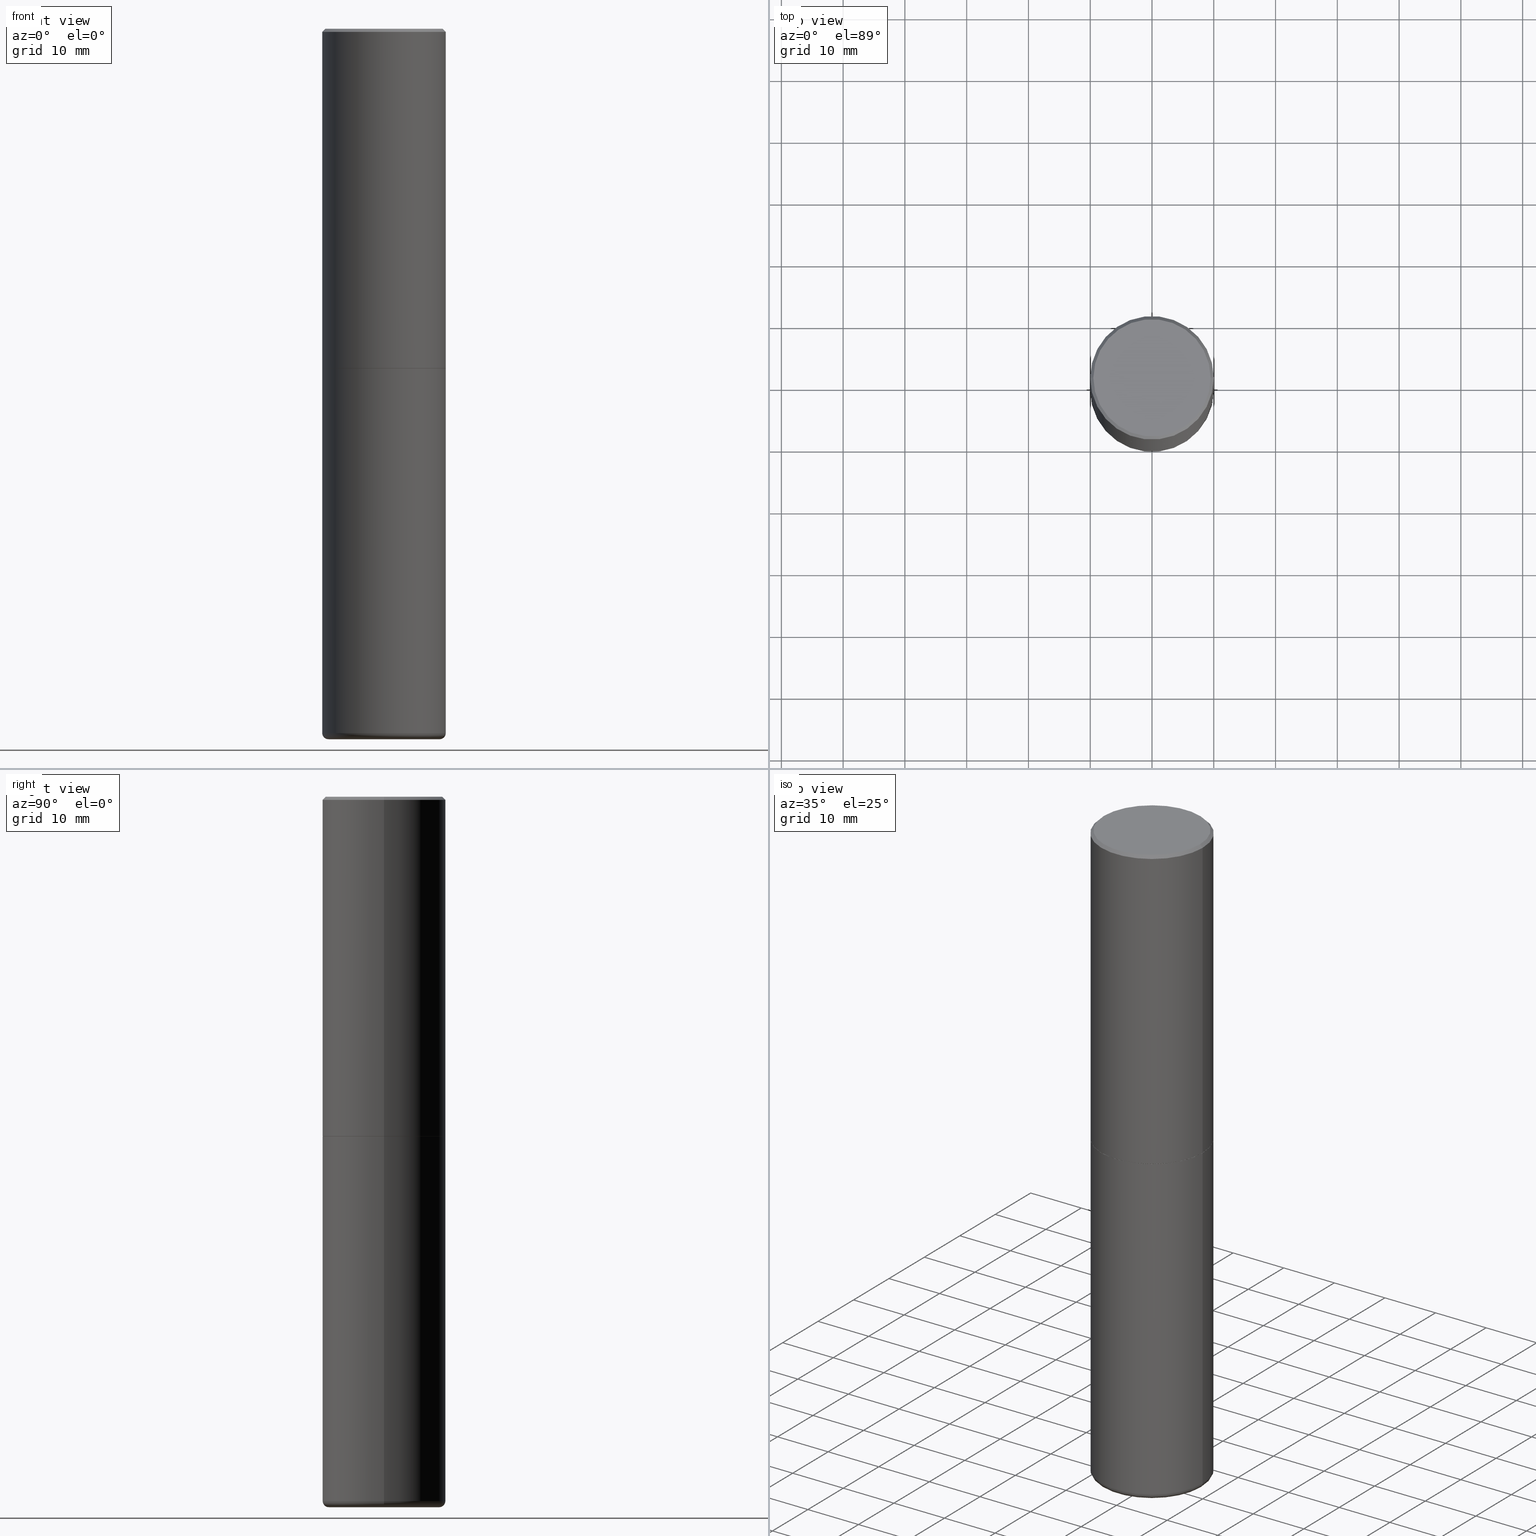
[diagram: canonical four-view strip — front | top / right | iso, engineering-drawing reading convention]
A machine part, canonical four-view strip (front | top / right | iso — engineering-drawing reading convention). The complete STEP part file that produces these views, byte-faithful:
ISO-10303-21;
HEADER;
FILE_DESCRIPTION (( 'STEP AP203' ),
    '1' );
FILE_NAME ('74530.STEP',
    '2024-03-06T15:24:33',
    ( '' ),
    ( '' ),
    'SwSTEP 2.0',
    'SolidWorks 2023',
    '' );
FILE_SCHEMA (( 'CONFIG_CONTROL_DESIGN' ));
ENDSEC;

DATA;
#1 = PRODUCT_RELATED_PRODUCT_CATEGORY ( 'detail', '', ( #184 ) ) ;
#2 = CARTESIAN_POINT ( 'NONE',  ( 1.107210456688382522E-28, -1.580803090974622705E-14, -4.527600000000000513 ) ) ;
#3 = DIRECTION ( 'NONE',  ( -2.445468806185136597E-29, 3.491481338843145583E-15, 1.000000000000000000 ) ) ;
#4 = ORIENTED_EDGE ( 'NONE', *, *, #23, .F. ) ;
#5 = APPROVAL_STATUS ( 'not_yet_approved' ) ;
#6 = CC_DESIGN_APPROVAL ( #113, ( #410 ) ) ;
#7 = CARTESIAN_POINT ( 'NONE',  ( 1.097575309592012950E-28, -1.567046654499580152E-14, -4.488199999999999079 ) ) ;
#8 = COORDINATED_UNIVERSAL_TIME_OFFSET ( 5, 0, .BEHIND. ) ;
#9 = DIRECTION ( 'NONE',  ( 1.000000000000000000, -6.982962677686265922E-15, 4.876176775795935793E-29 ) ) ;
#10 = EDGE_LOOP ( 'NONE', ( #344, #309 ) ) ;
#11 = ORIENTED_EDGE ( 'NONE', *, *, #125, .T. ) ;
#12 = DIRECTION ( 'NONE',  ( -1.000000000000000000, 6.982962677686265922E-15, -4.876176775795935793E-29 ) ) ;
#13 = SECURITY_CLASSIFICATION ( '', '', #107 ) ;
#14 = DIRECTION ( 'NONE',  ( 1.000000000000000000, -6.982962677686266711E-15, 4.876176775795935793E-29 ) ) ;
#15 = ORIENTED_EDGE ( 'NONE', *, *, #92, .F. ) ;
#16 = EDGE_CURVE ( 'NONE', #110, #223, #133, .T. ) ;
#17 = DIRECTION ( 'NONE',  ( -2.445468806185136597E-29, 3.491481338843145583E-15, 1.000000000000000000 ) ) ;
#18 = ADVANCED_FACE ( 'NONE', ( #325 ), #94, .T. ) ;
#19 = DATE_AND_TIME ( #76, #256 ) ;
#20 = AXIS2_PLACEMENT_3D ( 'NONE', #179, #74, #341 ) ;
#21 = ORIENTED_EDGE ( 'NONE', *, *, #251, .F. ) ;
#22 = EDGE_CURVE ( 'NONE', #84, #181, #247, .T. ) ;
#23 = EDGE_CURVE ( 'NONE', #42, #84, #227, .T. ) ;
#24 = CALENDAR_DATE ( 2024, 6, 3 ) ;
#25 = AXIS2_PLACEMENT_3D ( 'NONE', #168, #390, #232 ) ;
#26 = CYLINDRICAL_SURFACE ( 'NONE', #96, 0.3937000000000000499 ) ;
#27 = AXIS2_PLACEMENT_3D ( 'NONE', #188, #128, #319 ) ;
#28 = FACE_OUTER_BOUND ( 'NONE', #266, .T. ) ;
#29 = PLANE ( 'NONE',  #85 ) ;
#30 = ADVANCED_FACE ( 'NONE', ( #28 ), #166, .T. ) ;
#31 = CC_DESIGN_PERSON_AND_ORGANIZATION_ASSIGNMENT ( #240, #111, ( #313 ) ) ;
#32 = CARTESIAN_POINT ( 'NONE',  ( 0.000000000000000000, 0.000000000000000000, 0.000000000000000000 ) ) ;
#33 = CIRCLE ( 'NONE', #95, 0.3937000000000000499 ) ;
#34 = AXIS2_PLACEMENT_3D ( 'NONE', #359, #326, #293 ) ;
#35 = FACE_OUTER_BOUND ( 'NONE', #398, .T. ) ;
#36 = CC_DESIGN_PERSON_AND_ORGANIZATION_ASSIGNMENT ( #46, #182, ( #13 ) ) ;
#37 =( LENGTH_UNIT ( ) NAMED_UNIT ( * ) SI_UNIT ( $, .METRE. ) );
#38 = CARTESIAN_POINT ( 'NONE',  ( 0.3937000000000002164, -1.841965895120088790E-14, -4.488199999999999079 ) ) ;
#39 = CARTESIAN_POINT ( 'NONE',  ( -0.3737000000000003097, 2.644447966039789847E-15, -2.219626494852397645E-16 ) ) ;
#40 = ORIENTED_EDGE ( 'NONE', *, *, #125, .F. ) ;
#41 = CARTESIAN_POINT ( 'NONE',  ( 0.3543000000000000038, -1.814453022170004631E-14, -4.488199999999999079 ) ) ;
#42 = VERTEX_POINT ( 'NONE', #199 ) ;
#43 = DATE_AND_TIME ( #337, #318 ) ;
#44 = DIRECTION ( 'NONE',  ( -1.000000000000000000, 6.982962677686265922E-15, 0.000000000000000000 ) ) ;
#45 = ORIENTED_EDGE ( 'NONE', *, *, #189, .T. ) ;
#46 = PERSON_AND_ORGANIZATION ( #167, #279 ) ;
#47 = DIRECTION ( 'NONE',  ( -2.445468806185136597E-29, 3.491481338843145583E-15, 1.000000000000000000 ) ) ;
#48 = ORIENTED_EDGE ( 'NONE', *, *, #16, .T. ) ;
#49 = DIRECTION ( 'NONE',  ( 0.000000000000000000, 0.000000000000000000, 1.000000000000000000 ) ) ;
#50 = DIRECTION ( 'NONE',  ( -0.7071067811865450192, 2.468850131082230634E-15, -0.7071067811865500152 ) ) ;
#51 = ORIENTED_EDGE ( 'NONE', *, *, #62, .F. ) ;
#52 = AXIS2_PLACEMENT_3D ( 'NONE', #378, #412, #258 ) ;
#53 = CC_DESIGN_DATE_AND_TIME_ASSIGNMENT ( #19, #161, ( #13 ) ) ;
#54 = CARTESIAN_POINT ( 'NONE',  ( 6.196559828010245443E-29, -2.279008847458637242E-14, -4.527600000000000513 ) ) ;
#55 = ORIENTED_EDGE ( 'NONE', *, *, #375, .F. ) ;
#56 = CIRCLE ( 'NONE', #106, 0.3737000000000003097 ) ;
#57 = EDGE_LOOP ( 'NONE', ( #78, #144 ) ) ;
#58 = CONICAL_SURFACE ( 'NONE', #286, 0.3937000000000000499, 0.7853981633974447263 ) ;
#59 = CONICAL_SURFACE ( 'NONE', #52, 0.3926999999999999935, 0.7853981633975507526 ) ;
#60 = LINE ( 'NONE', #352, #267 ) ;
#61 = DIRECTION ( 'NONE',  ( 1.000000000000000000, -6.982962677686268288E-15, 0.000000000000000000 ) ) ;
#62 = EDGE_CURVE ( 'NONE', #223, #409, #64, .T. ) ;
#63 = CARTESIAN_POINT ( 'NONE',  ( -0.3937000000000001609, 2.797406750687515575E-15, -1.936584745033357296E-29 ) ) ;
#64 = LINE ( 'NONE', #200, #358 ) ;
#65 = ADVANCED_FACE ( 'NONE', ( #328 ), #384, .T. ) ;
#66 = AXIS2_PLACEMENT_3D ( 'NONE', #2, #211, #300 ) ;
#67 = ORIENTED_EDGE ( 'NONE', *, *, #254, .F. ) ;
#68 = CARTESIAN_POINT ( 'NONE',  ( 5.295418152913293224E-29, -7.560453691130945845E-15, -2.165399999999999547 ) ) ;
#69 = DIRECTION ( 'NONE',  ( 1.000000000000000000, -6.982962677686266711E-15, 4.883557194083112340E-29 ) ) ;
#70 = EDGE_LOOP ( 'NONE', ( #353, #163 ) ) ;
#71 = COORDINATED_UNIVERSAL_TIME_OFFSET ( 5, 0, .BEHIND. ) ;
#72 = CARTESIAN_POINT ( 'NONE',  ( 0.3937000000000000499, -2.770807688499515734E-15, -0.02000000000000008715 ) ) ;
#73 = PERSON_AND_ORGANIZATION ( #167, #279 ) ;
#74 = DIRECTION ( 'NONE',  ( -2.445468806185136597E-29, 3.491481338843145583E-15, 1.000000000000000000 ) ) ;
#75 = DIRECTION ( 'NONE',  ( 0.7071067811866199593, -2.468850131083015945E-15, 0.7071067811864750752 ) ) ;
#76 = CALENDAR_DATE ( 2024, 6, 3 ) ;
#77 = FACE_OUTER_BOUND ( 'NONE', #186, .T. ) ;
#78 = ORIENTED_EDGE ( 'NONE', *, *, #251, .T. ) ;
#79 = APPROVAL ( #153, 'UNSPECIFIED' ) ;
#80 = CALENDAR_DATE ( 2024, 6, 3 ) ;
#81 = AXIS2_PLACEMENT_3D ( 'NONE', #361, #387, #134 ) ;
#82 = DIRECTION ( 'NONE',  ( -1.000000000000000000, 6.982962677686265922E-15, -4.876176775795935793E-29 ) ) ;
#83 = ORIENTED_EDGE ( 'NONE', *, *, #138, .F. ) ;
#84 = VERTEX_POINT ( 'NONE', #230 ) ;
#85 = AXIS2_PLACEMENT_3D ( 'NONE', #323, #357, #82 ) ;
#86 = CARTESIAN_POINT ( 'NONE',  ( 5.292972684107107621E-29, -7.556962209792102838E-15, -2.164399999999999658 ) ) ;
#87 = CIRCLE ( 'NONE', #20, 0.3737000000000003097 ) ;
#88 = APPROVAL_ROLE ( '' ) ;
#89 = ADVANCED_FACE ( 'NONE', ( #35 ), #285, .T. ) ;
#90 = CARTESIAN_POINT ( 'NONE',  ( -0.3543000000000000038, -1.308181889562823723E-14, -4.527600000000000513 ) ) ;
#91 = DIRECTION ( 'NONE',  ( -2.445468806185136597E-29, 3.491481338843145583E-15, 1.000000000000000000 ) ) ;
#92 = EDGE_CURVE ( 'NONE', #291, #208, #400, .T. ) ;
#93 = APPLICATION_CONTEXT ( 'configuration controlled 3d designs of mechanical parts and assemblies' ) ;
#94 = CYLINDRICAL_SURFACE ( 'NONE', #206, 0.3937000000000000499 ) ;
#95 = AXIS2_PLACEMENT_3D ( 'NONE', #373, #331, #241 ) ;
#96 = AXIS2_PLACEMENT_3D ( 'NONE', #288, #404, #150 ) ;
#97 = CARTESIAN_POINT ( 'NONE',  ( 4.890937612370294178E-31, -6.982962677686321191E-17, -0.02000000000000008715 ) ) ;
#98 = VERTEX_POINT ( 'NONE', #39 ) ;
#99 = PLANE ( 'NONE',  #348 ) ;
#100 = ADVANCED_FACE ( 'NONE', ( #244 ), #399, .F. ) ;
#101 = ORIENTED_EDGE ( 'NONE', *, *, #22, .F. ) ;
#102 = EDGE_CURVE ( 'NONE', #105, #291, #371, .T. ) ;
#103 = COORDINATED_UNIVERSAL_TIME_OFFSET ( 5, 0, .BEHIND. ) ;
#104 = CARTESIAN_POINT ( 'NONE',  ( 1.097575309592012950E-28, -1.567046654499580152E-14, -4.488199999999999079 ) ) ;
#105 = VERTEX_POINT ( 'NONE', #397 ) ;
#106 = AXIS2_PLACEMENT_3D ( 'NONE', #146, #268, #169 ) ;
#107 = SECURITY_CLASSIFICATION_LEVEL ( 'unclassified' ) ;
#108 = AXIS2_PLACEMENT_3D ( 'NONE', #86, #312, #347 ) ;
#109 = CARTESIAN_POINT ( 'NONE',  ( 0.3543000000000000038, -1.828209458645046868E-14, -4.527600000000000513 ) ) ;
#110 = VERTEX_POINT ( 'NONE', #213 ) ;
#111 = PERSON_AND_ORGANIZATION_ROLE ( 'creator' ) ;
#112 = APPROVAL_PERSON_ORGANIZATION ( #321, #79, #88 ) ;
#113 = APPROVAL ( #5, 'UNSPECIFIED' ) ;
#114 = ORIENTED_EDGE ( 'NONE', *, *, #260, .F. ) ;
#115 = UNCERTAINTY_MEASURE_WITH_UNIT (LENGTH_MEASURE( 1.000000000000000082E-05 ), #310, 'distance_accuracy_value', 'NONE');
#116 = APPLICATION_PROTOCOL_DEFINITION ( 'international standard', 'config_control_design', 1994, #93 ) ;
#117 = AXIS2_PLACEMENT_3D ( 'NONE', #416, #262, #320 ) ;
#118 = DIRECTION ( 'NONE',  ( 0.7071067811865450192, -7.319954787623246579E-15, -0.7071067811865500152 ) ) ;
#119 = ORIENTED_EDGE ( 'NONE', *, *, #23, .T. ) ;
#120 = DIRECTION ( 'NONE',  ( 7.105427357601001859E-15, 1.000000000000000000, -3.491481338843145583E-15 ) ) ;
#121 = AXIS2_PLACEMENT_3D ( 'NONE', #104, #265, #338 ) ;
#122 = CC_DESIGN_SECURITY_CLASSIFICATION ( #13, ( #313 ) ) ;
#123 = EDGE_LOOP ( 'NONE', ( #212, #245, #336, #132 ) ) ;
#124 = CC_DESIGN_APPROVAL ( #79, ( #13 ) ) ;
#125 = EDGE_CURVE ( 'NONE', #317, #98, #56, .T. ) ;
#126 = ORIENTED_EDGE ( 'NONE', *, *, #375, .T. ) ;
#127 = MANIFOLD_SOLID_BREP ( 'Body-Move/Copy2[2]', #259 ) ;
#128 = DIRECTION ( 'NONE',  ( -2.445468806185136597E-29, 3.491481338843145583E-15, 1.000000000000000000 ) ) ;
#129 = DIRECTION ( 'NONE',  ( 1.000000000000000000, -6.982962677686265922E-15, 0.000000000000000000 ) ) ;
#130 = CARTESIAN_POINT ( 'NONE',  ( -0.3543000000000000038, -1.315301363219776772E-14, -4.488199999999999079 ) ) ;
#131 = AXIS2_PLACEMENT_3D ( 'NONE', #140, #335, #9 ) ;
#132 = ORIENTED_EDGE ( 'NONE', *, *, #290, .F. ) ;
#133 = CIRCLE ( 'NONE', #117, 0.3937000000000000499 ) ;
#134 = DIRECTION ( 'NONE',  ( 1.000000000000000000, -6.982962677686266711E-15, 4.876176775795935793E-29 ) ) ;
#135 = MANIFOLD_SOLID_BREP ( 'Body-Move/Copy2[1]', #175 ) ;
#136 = CARTESIAN_POINT ( 'NONE',  ( 0.3926999999999999935, -1.030266313465834305E-14, -2.165399999999999547 ) ) ;
#137 = AXIS2_PLACEMENT_3D ( 'NONE', #183, #392, #174 ) ;
#138 = EDGE_CURVE ( 'NONE', #148, #223, #356, .T. ) ;
#139 = FACE_OUTER_BOUND ( 'NONE', #284, .T. ) ;
#140 = CARTESIAN_POINT ( 'NONE',  ( 5.295418152913293224E-29, -7.560453691130945845E-15, -2.165399999999999547 ) ) ;
#141 = ORIENTED_EDGE ( 'NONE', *, *, #263, .T. ) ;
#142 = APPROVAL_STATUS ( 'not_yet_approved' ) ;
#143 = LINE ( 'NONE', #152, #324 ) ;
#144 = ORIENTED_EDGE ( 'NONE', *, *, #158, .T. ) ;
#145 = EDGE_CURVE ( 'NONE', #110, #155, #171, .T. ) ;
#146 = CARTESIAN_POINT ( 'NONE',  ( 5.428027354543142984E-45, -7.749784485978325769E-31, -2.219626494852213988E-16 ) ) ;
#147 = AXIS2_PLACEMENT_3D ( 'NONE', #130, #120, #414 ) ;
#148 = VERTEX_POINT ( 'NONE', #109 ) ;
#149 =( NAMED_UNIT ( * ) PLANE_ANGLE_UNIT ( ) SI_UNIT ( $, .RADIAN. ) );
#150 = DIRECTION ( 'NONE',  ( 1.000000000000000000, -6.982962677686265922E-15, 4.876176775795935793E-29 ) ) ;
#151 = EDGE_LOOP ( 'NONE', ( #239, #48, #205, #216 ) ) ;
#152 = CARTESIAN_POINT ( 'NONE',  ( 0.3937000000000001609, -2.749192406205084400E-15, 1.919750796630860732E-29 ) ) ;
#153 = APPROVAL_STATUS ( 'not_yet_approved' ) ;
#154 = ORIENTED_EDGE ( 'NONE', *, *, #145, .T. ) ;
#155 = VERTEX_POINT ( 'NONE', #275 ) ;
#156 = APPROVAL_DATE_TIME ( #193, #79 ) ;
#157 = CARTESIAN_POINT ( 'NONE',  ( 0.000000000000000000, 0.000000000000000000, 0.000000000000000000 ) ) ;
#158 = EDGE_CURVE ( 'NONE', #155, #409, #33, .T. ) ;
#159 = PRODUCT_DEFINITION_SHAPE ( 'NONE', 'NONE',  #410 ) ;
#160 = CIRCLE ( 'NONE', #219, 0.3937000000000000499 ) ;
#161 = DATE_TIME_ROLE ( 'classification_date' ) ;
#162 = LINE ( 'NONE', #281, #210 ) ;
#163 = ORIENTED_EDGE ( 'NONE', *, *, #102, .F. ) ;
#164 = DIRECTION ( 'NONE',  ( -0.7071067811866199593, 7.493145998870616062E-15, 0.7071067811864750752 ) ) ;
#165 = AXIS2_PLACEMENT_3D ( 'NONE', #41, #238, #332 ) ;
#166 = CYLINDRICAL_SURFACE ( 'NONE', #81, 0.3937000000000001609 ) ;
#167 = PERSON ( 'UNSPECIFIED', 'UNSPECIFIED', 'UNSPECIFIED', ('UNSPECIFIED'), ('UNSPECIFIED'), ('UNSPECIFIED') ) ;
#168 = CARTESIAN_POINT ( 'NONE',  ( 4.890937612370294178E-31, -6.982962677686321191E-17, -0.02000000000000008715 ) ) ;
#169 = DIRECTION ( 'NONE',  ( 1.000000000000000000, -6.982962677686266711E-15, 4.877734241229871763E-29 ) ) ;
#170 = EDGE_CURVE ( 'NONE', #369, #148, #202, .T. ) ;
#171 = LINE ( 'NONE', #204, #411 ) ;
#172 = ORIENTED_EDGE ( 'NONE', *, *, #345, .F. ) ;
#173 = MECHANICAL_CONTEXT ( 'NONE', #93, 'mechanical' ) ;
#174 = DIRECTION ( 'NONE',  ( 1.000000000000000000, -6.982962677686266711E-15, 4.883557194083112340E-29 ) ) ;
#175 = CLOSED_SHELL ( 'NONE', ( #18, #249, #228, #354, #224, #406 ) ) ;
#176 = ORIENTED_EDGE ( 'NONE', *, *, #170, .T. ) ;
#177 = VECTOR ( 'NONE', #118, 39.37007874015748143 ) ;
#178 = LENGTH_MEASURE_WITH_UNIT ( LENGTH_MEASURE( 0.02539999999999999897 ), #37 );
#179 = CARTESIAN_POINT ( 'NONE',  ( 5.428027354543142984E-45, -7.749784485978325769E-31, -2.219626494852213988E-16 ) ) ;
#180 = DIRECTION ( 'NONE',  ( 1.000000000000000000, -6.982962677686265133E-15, 0.000000000000000000 ) ) ;
#181 = VERTEX_POINT ( 'NONE', #72 ) ;
#182 = PERSON_AND_ORGANIZATION_ROLE ( 'classification_officer' ) ;
#183 = CARTESIAN_POINT ( 'NONE',  ( 1.097575309592012950E-28, -1.567046654499580152E-14, -4.488199999999999079 ) ) ;
#184 = PRODUCT ( '74530', '74530', '', ( #173 ) ) ;
#185 = FACE_OUTER_BOUND ( 'NONE', #151, .T. ) ;
#186 = EDGE_LOOP ( 'NONE', ( #235, #119, #355, #67 ) ) ;
#187 = CALENDAR_DATE ( 2024, 6, 3 ) ;
#188 = CARTESIAN_POINT ( 'NONE',  ( 5.292972684107107621E-29, -7.556962209792102838E-15, -2.164399999999999658 ) ) ;
#189 = EDGE_CURVE ( 'NONE', #148, #369, #322, .T. ) ;
#190 = ORIENTED_EDGE ( 'NONE', *, *, #138, .T. ) ;
#191 = AXIS2_PLACEMENT_3D ( 'NONE', #362, #413, #129 ) ;
#192 = EDGE_LOOP ( 'NONE', ( #45, #126, #333, #83 ) ) ;
#193 = DATE_AND_TIME ( #24, #289 ) ;
#194 = CARTESIAN_POINT ( 'NONE',  ( 0.3926999999999999935, -1.030266313465834305E-14, -2.165399999999999547 ) ) ;
#195 = CIRCLE ( 'NONE', #121, 0.3937000000000000499 ) ;
#196 = ORIENTED_EDGE ( 'NONE', *, *, #254, .T. ) ;
#197 = AXIS2_PLACEMENT_3D ( 'NONE', #261, #17, #61 ) ;
#198 = FACE_OUTER_BOUND ( 'NONE', #278, .T. ) ;
#199 = CARTESIAN_POINT ( 'NONE',  ( -0.3937000000000003830, -1.015989167596963746E-15, -2.164399999999999658 ) ) ;
#200 = CARTESIAN_POINT ( 'NONE',  ( 0.3937000000000000499, -2.749192406205083217E-15, 1.919750796630860172E-29 ) ) ;
#201 = APPLICATION_CONTEXT ( 'configuration controlled 3d designs of mechanical parts and assemblies' ) ;
#202 = CIRCLE ( 'NONE', #66, 0.3543000000000000038 ) ;
#203 = CIRCLE ( 'NONE', #27, 0.3937000000000002720 ) ;
#204 = CARTESIAN_POINT ( 'NONE',  ( -0.3937000000000000499, 2.797406750687514786E-15, -1.936584745033356735E-29 ) ) ;
#205 = ORIENTED_EDGE ( 'NONE', *, *, #62, .T. ) ;
#206 = AXIS2_PLACEMENT_3D ( 'NONE', #32, #91, #329 ) ;
#207 = CARTESIAN_POINT ( 'NONE',  ( 5.295418152913293224E-29, -7.560453691130945845E-15, -2.165399999999999547 ) ) ;
#208 = VERTEX_POINT ( 'NONE', #301 ) ;
#209 = CARTESIAN_POINT ( 'NONE',  ( 0.3937000000000000499, -1.030964609733602906E-14, -2.165399999999999547 ) ) ;
#210 = VECTOR ( 'NONE', #50, 39.37007874015748143 ) ;
#211 = DIRECTION ( 'NONE',  ( -2.445468806185136597E-29, 3.491481338843145583E-15, 1.000000000000000000 ) ) ;
#212 = ORIENTED_EDGE ( 'NONE', *, *, #365, .F. ) ;
#213 = CARTESIAN_POINT ( 'NONE',  ( -0.3937000000000002164, -1.287305979430828753E-14, -4.488199999999999079 ) ) ;
#214 = APPROVAL_ROLE ( '' ) ;
#215 = DIRECTION ( 'NONE',  ( -2.445468806185136597E-29, 3.491481338843145583E-15, 1.000000000000000000 ) ) ;
#216 = ORIENTED_EDGE ( 'NONE', *, *, #158, .F. ) ;
#217 = PERSON_AND_ORGANIZATION ( #167, #279 ) ;
#218 = CIRCLE ( 'NONE', #197, 0.3926999999999999935 ) ;
#219 = AXIS2_PLACEMENT_3D ( 'NONE', #236, #272, #180 ) ;
#220 = PLANE ( 'NONE',  #298 ) ;
#221 = APPROVAL ( #142, 'UNSPECIFIED' ) ;
#222 = ORIENTED_EDGE ( 'NONE', *, *, #383, .T. ) ;
#223 = VERTEX_POINT ( 'NONE', #38 ) ;
#224 = ADVANCED_FACE ( 'NONE', ( #139 ), #231, .T. ) ;
#225 = CYLINDRICAL_SURFACE ( 'NONE', #417, 0.3937000000000001609 ) ;
#226 = CARTESIAN_POINT ( 'NONE',  ( 0.3737000000000003097, -2.667287895133369937E-15, -2.219626494852029345E-16 ) ) ;
#227 = LINE ( 'NONE', #63, #391 ) ;
#228 = ADVANCED_FACE ( 'NONE', ( #395 ), #99, .F. ) ;
#229 = EDGE_CURVE ( 'NONE', #223, #110, #195, .T. ) ;
#230 = CARTESIAN_POINT ( 'NONE',  ( -0.3937000000000000499, 2.679362779428219918E-15, -0.02000000000000008715 ) ) ;
#231 = TOROIDAL_SURFACE ( 'NONE', #137, 0.3543000000000000038, 0.03940000000000033753 ) ;
#232 = DIRECTION ( 'NONE',  ( -1.000000000000000000, 6.982962677686265922E-15, 0.000000000000000000 ) ) ;
#233 = ADVANCED_FACE ( 'NONE', ( #305 ), #58, .T. ) ;
#234 = DIRECTION ( 'NONE',  ( 2.445468806185136597E-29, -3.491481338843145583E-15, -1.000000000000000000 ) ) ;
#235 = ORIENTED_EDGE ( 'NONE', *, *, #260, .T. ) ;
#236 = CARTESIAN_POINT ( 'NONE',  ( 5.295418152913293224E-29, -7.560453691130945845E-15, -2.165399999999999547 ) ) ;
#237 = PERSON_AND_ORGANIZATION ( #167, #279 ) ;
#238 = DIRECTION ( 'NONE',  ( -6.982962677686266711E-15, -1.000000000000000000, 3.491481338843145583E-15 ) ) ;
#239 = ORIENTED_EDGE ( 'NONE', *, *, #145, .F. ) ;
#240 = PERSON_AND_ORGANIZATION ( #167, #279 ) ;
#241 = DIRECTION ( 'NONE',  ( 1.000000000000000000, -6.982962677686265133E-15, 0.000000000000000000 ) ) ;
#242 = LOCAL_TIME ( 10, 24, 33.00000000000000000, #103 ) ;
#243 = COORDINATED_UNIVERSAL_TIME_OFFSET ( 5, 0, .BEHIND. ) ;
#244 = FACE_OUTER_BOUND ( 'NONE', #70, .T. ) ;
#245 = ORIENTED_EDGE ( 'NONE', *, *, #102, .T. ) ;
#246 = PERSON_AND_ORGANIZATION ( #167, #279 ) ;
#247 = CIRCLE ( 'NONE', #191, 0.3937000000000000499 ) ;
#248 = FACE_OUTER_BOUND ( 'NONE', #10, .T. ) ;
#249 = ADVANCED_FACE ( 'NONE', ( #364 ), #351, .T. ) ;
#250 = ORIENTED_EDGE ( 'NONE', *, *, #415, .F. ) ;
#251 = EDGE_CURVE ( 'NONE', #409, #155, #160, .T. ) ;
#252 = DIRECTION ( 'NONE',  ( 1.000000000000000000, 0.000000000000000000, 0.000000000000000000 ) ) ;
#253 = CC_DESIGN_APPROVAL ( #221, ( #313 ) ) ;
#254 = EDGE_CURVE ( 'NONE', #208, #181, #143, .T. ) ;
#255 = SHAPE_DEFINITION_REPRESENTATION ( #159, #342 ) ;
#256 = LOCAL_TIME ( 10, 24, 33.00000000000000000, #243 ) ;
#257 = EDGE_LOOP ( 'NONE', ( #306, #11 ) ) ;
#258 = DIRECTION ( 'NONE',  ( 1.000000000000000000, -6.982962677686268288E-15, 0.000000000000000000 ) ) ;
#259 = CLOSED_SHELL ( 'NONE', ( #367, #296, #89, #233, #30, #65, #100, #299 ) ) ;
#260 = EDGE_CURVE ( 'NONE', #208, #42, #203, .T. ) ;
#261 = CARTESIAN_POINT ( 'NONE',  ( 5.295418152913293224E-29, -7.560453691130945845E-15, -2.165399999999999547 ) ) ;
#262 = DIRECTION ( 'NONE',  ( -2.445468806185136597E-29, 3.491481338843145583E-15, 1.000000000000000000 ) ) ;
#263 = EDGE_CURVE ( 'NONE', #291, #105, #218, .T. ) ;
#264 = DIRECTION ( 'NONE',  ( -2.445468806185136877E-29, 3.491481338843145188E-15, 1.000000000000000000 ) ) ;
#265 = DIRECTION ( 'NONE',  ( -2.445468806185136597E-29, 3.491481338843145583E-15, 1.000000000000000000 ) ) ;
#266 = EDGE_LOOP ( 'NONE', ( #4, #366, #196, #101 ) ) ;
#267 = VECTOR ( 'NONE', #164, 39.37007874015748143 ) ;
#268 = DIRECTION ( 'NONE',  ( -2.445468806185136597E-29, 3.491481338843145583E-15, 1.000000000000000000 ) ) ;
#269 = AXIS2_PLACEMENT_3D ( 'NONE', #276, #49, #252 ) ;
#270 = EDGE_LOOP ( 'NONE', ( #381, #250, #273, #283 ) ) ;
#271 = DATE_AND_TIME ( #80, #242 ) ;
#272 = DIRECTION ( 'NONE',  ( -2.445468806185136597E-29, 3.491481338843145583E-15, 1.000000000000000000 ) ) ;
#273 = ORIENTED_EDGE ( 'NONE', *, *, #345, .T. ) ;
#274 = APPROVAL_DATE_TIME ( #43, #221 ) ;
#275 = CARTESIAN_POINT ( 'NONE',  ( -0.3937000000000000499, -8.818053367375859687E-15, -2.165399999999999547 ) ) ;
#276 = CARTESIAN_POINT ( 'NONE',  ( 0.000000000000000000, 0.000000000000000000, 0.000000000000000000 ) ) ;
#277 = DIRECTION ( 'NONE',  ( -2.445468806185136877E-29, 3.491481338843145188E-15, 1.000000000000000000 ) ) ;
#278 = EDGE_LOOP ( 'NONE', ( #141, #393, #114, #15 ) ) ;
#279 = ORGANIZATION ( 'UNSPECIFIED', 'UNSPECIFIED', '' ) ;
#280 = LINE ( 'NONE', #402, #177 ) ;
#281 = CARTESIAN_POINT ( 'NONE',  ( -0.3937000000000000499, 2.679362779428219918E-15, -0.02000000000000008715 ) ) ;
#282 = DESIGN_CONTEXT ( 'detailed design', #201, 'design' ) ;
#283 = ORIENTED_EDGE ( 'NONE', *, *, #22, .T. ) ;
#284 = EDGE_LOOP ( 'NONE', ( #55, #176, #190, #302 ) ) ;
#285 = CONICAL_SURFACE ( 'NONE', #25, 0.3937000000000000499, 0.7853981633974447263 ) ;
#286 = AXIS2_PLACEMENT_3D ( 'NONE', #97, #234, #44 ) ;
#287 = COORDINATED_UNIVERSAL_TIME_OFFSET ( 5, 0, .BEHIND. ) ;
#288 = CARTESIAN_POINT ( 'NONE',  ( 0.000000000000000000, 0.000000000000000000, 0.000000000000000000 ) ) ;
#289 = LOCAL_TIME ( 10, 24, 33.00000000000000000, #287 ) ;
#290 = EDGE_CURVE ( 'NONE', #42, #208, #295, .T. ) ;
#291 = VERTEX_POINT ( 'NONE', #194 ) ;
#292 = CC_DESIGN_PERSON_AND_ORGANIZATION_ASSIGNMENT ( #217, #350, ( #410 ) ) ;
#293 = DIRECTION ( 'NONE',  ( 1.000000000000000000, -6.982962677686265922E-15, 0.000000000000000000 ) ) ;
#294 = CARTESIAN_POINT ( 'NONE',  ( 5.295418152913293224E-29, -7.560453691130945845E-15, -2.165399999999999547 ) ) ;
#295 = CIRCLE ( 'NONE', #108, 0.3937000000000002720 ) ;
#296 = ADVANCED_FACE ( 'NONE', ( #77 ), #225, .T. ) ;
#297 = DIRECTION ( 'NONE',  ( -1.000000000000000000, 6.982962677686265922E-15, -4.876176775795935793E-29 ) ) ;
#298 = AXIS2_PLACEMENT_3D ( 'NONE', #54, #394, #297 ) ;
#299 = ADVANCED_FACE ( 'NONE', ( #388 ), #29, .F. ) ;
#300 = DIRECTION ( 'NONE',  ( 1.000000000000000000, -6.982962677686261189E-15, 0.000000000000000000 ) ) ;
#301 = CARTESIAN_POINT ( 'NONE',  ( 0.3937000000000002720, -1.030615461599718763E-14, -2.164399999999999658 ) ) ;
#302 = ORIENTED_EDGE ( 'NONE', *, *, #16, .F. ) ;
#303 = APPLICATION_PROTOCOL_DEFINITION ( 'international standard', 'config_control_design', 1994, #201 ) ;
#304 = PERSON_AND_ORGANIZATION_ROLE ( 'design_owner' ) ;
#305 = FACE_OUTER_BOUND ( 'NONE', #270, .T. ) ;
#306 = ORIENTED_EDGE ( 'NONE', *, *, #415, .T. ) ;
#307 = DIRECTION ( 'NONE',  ( 2.438088387897960049E-29, -3.491481338843145188E-15, -1.000000000000000000 ) ) ;
#308 = AXIS2_PLACEMENT_3D ( 'NONE', #294, #418, #389 ) ;
#309 = ORIENTED_EDGE ( 'NONE', *, *, #170, .F. ) ;
#310 =( CONVERSION_BASED_UNIT ( 'INCH', #178 ) LENGTH_UNIT ( ) NAMED_UNIT ( #401 ) );
#311 = CC_DESIGN_DATE_AND_TIME_ASSIGNMENT ( #403, #314, ( #410 ) ) ;
#312 = DIRECTION ( 'NONE',  ( -2.445468806185136597E-29, 3.491481338843145583E-15, 1.000000000000000000 ) ) ;
#313 = PRODUCT_DEFINITION_FORMATION_WITH_SPECIFIED_SOURCE ( 'ANY', '', #184, .NOT_KNOWN. ) ;
#314 = DATE_TIME_ROLE ( 'creation_date' ) ;
#315 = DIRECTION ( 'NONE',  ( -2.445468806185136877E-29, 3.491481338843145188E-15, 1.000000000000000000 ) ) ;
#316 = EDGE_LOOP ( 'NONE', ( #349, #154, #21, #51 ) ) ;
#317 = VERTEX_POINT ( 'NONE', #226 ) ;
#318 = LOCAL_TIME ( 10, 24, 33.00000000000000000, #71 ) ;
#319 = DIRECTION ( 'NONE',  ( 1.000000000000000000, -6.982962677686269077E-15, 0.000000000000000000 ) ) ;
#320 = DIRECTION ( 'NONE',  ( 1.000000000000000000, -6.982962677686262766E-15, 0.000000000000000000 ) ) ;
#321 = PERSON_AND_ORGANIZATION ( #167, #279 ) ;
#322 = CIRCLE ( 'NONE', #363, 0.3543000000000000038 ) ;
#323 = CARTESIAN_POINT ( 'NONE',  ( 2.609533152651359776E-15, 0.3737000000000003097, -1.415747901068295320E-15 ) ) ;
#324 = VECTOR ( 'NONE', #315, 39.37007874015748143 ) ;
#325 = FACE_OUTER_BOUND ( 'NONE', #316, .T. ) ;
#326 = DIRECTION ( 'NONE',  ( -2.445468806185136597E-29, 3.491481338843145583E-15, 1.000000000000000000 ) ) ;
#327 = DIRECTION ( 'NONE',  ( -2.445468806185136877E-29, 3.491481338843145188E-15, 1.000000000000000000 ) ) ;
#328 = FACE_OUTER_BOUND ( 'NONE', #123, .T. ) ;
#329 = DIRECTION ( 'NONE',  ( 1.000000000000000000, -6.982962677686265922E-15, 4.876176775795935793E-29 ) ) ;
#330 = LOCAL_TIME ( 10, 24, 33.00000000000000000, #8 ) ;
#331 = DIRECTION ( 'NONE',  ( -2.445468806185136597E-29, 3.491481338843145583E-15, 1.000000000000000000 ) ) ;
#332 = DIRECTION ( 'NONE',  ( 1.000000000000000000, -6.982962677686268288E-15, 0.000000000000000000 ) ) ;
#333 = ORIENTED_EDGE ( 'NONE', *, *, #229, .F. ) ;
#334 = CC_DESIGN_PERSON_AND_ORGANIZATION_ASSIGNMENT ( #73, #340, ( #313 ) ) ;
#335 = DIRECTION ( 'NONE',  ( -2.438088387897960049E-29, 3.491481338843145188E-15, 1.000000000000000000 ) ) ;
#336 = ORIENTED_EDGE ( 'NONE', *, *, #92, .T. ) ;
#337 = CALENDAR_DATE ( 2024, 6, 3 ) ;
#338 = DIRECTION ( 'NONE',  ( 1.000000000000000000, -6.982962677686262766E-15, 0.000000000000000000 ) ) ;
#339 = ORIENTED_EDGE ( 'NONE', *, *, #405, .T. ) ;
#340 = PERSON_AND_ORGANIZATION_ROLE ( 'design_supplier' ) ;
#341 = DIRECTION ( 'NONE',  ( 1.000000000000000000, -6.982962677686266711E-15, 4.877734241229871763E-29 ) ) ;
#342 = ADVANCED_BREP_SHAPE_REPRESENTATION ( '74530', ( #135, #127, #269 ), #382 ) ;
#343 = CARTESIAN_POINT ( 'NONE',  ( 1.107210456688382522E-28, -1.580803090974622705E-14, -4.527600000000000513 ) ) ;
#344 = ORIENTED_EDGE ( 'NONE', *, *, #189, .F. ) ;
#345 = EDGE_CURVE ( 'NONE', #98, #84, #162, .T. ) ;
#346 = PERSON_AND_ORGANIZATION ( #167, #279 ) ;
#347 = DIRECTION ( 'NONE',  ( 1.000000000000000000, -6.982962677686269077E-15, 0.000000000000000000 ) ) ;
#348 = AXIS2_PLACEMENT_3D ( 'NONE', #68, #307, #12 ) ;
#349 = ORIENTED_EDGE ( 'NONE', *, *, #229, .T. ) ;
#350 = PERSON_AND_ORGANIZATION_ROLE ( 'creator' ) ;
#351 = TOROIDAL_SURFACE ( 'NONE', #385, 0.3543000000000000038, 0.03940000000000033753 ) ;
#352 = CARTESIAN_POINT ( 'NONE',  ( -0.3926999999999999935, -4.770152367801032067E-15, -2.165399999999999547 ) ) ;
#353 = ORIENTED_EDGE ( 'NONE', *, *, #263, .F. ) ;
#354 = ADVANCED_FACE ( 'NONE', ( #185 ), #26, .T. ) ;
#355 = ORIENTED_EDGE ( 'NONE', *, *, #383, .F. ) ;
#356 = CIRCLE ( 'NONE', #165, 0.03940000000000033753 ) ;
#357 = DIRECTION ( 'NONE',  ( 2.438088387897960049E-29, -3.491481338843145188E-15, -1.000000000000000000 ) ) ;
#358 = VECTOR ( 'NONE', #264, 39.37007874015748143 ) ;
#359 = CARTESIAN_POINT ( 'NONE',  ( 4.890937612370294178E-31, -6.982962677686321191E-17, -0.02000000000000008715 ) ) ;
#360 = CIRCLE ( 'NONE', #147, 0.03940000000000033753 ) ;
#361 = CARTESIAN_POINT ( 'NONE',  ( 0.000000000000000000, 0.000000000000000000, 0.000000000000000000 ) ) ;
#362 = CARTESIAN_POINT ( 'NONE',  ( 4.890937612370294178E-31, -6.982962677686321191E-17, -0.02000000000000008715 ) ) ;
#363 = AXIS2_PLACEMENT_3D ( 'NONE', #343, #47, #374 ) ;
#364 = FACE_OUTER_BOUND ( 'NONE', #192, .T. ) ;
#365 = EDGE_CURVE ( 'NONE', #105, #42, #60, .T. ) ;
#366 = ORIENTED_EDGE ( 'NONE', *, *, #290, .T. ) ;
#367 = ADVANCED_FACE ( 'NONE', ( #198 ), #59, .T. ) ;
#368 = DIRECTION ( 'NONE',  ( -2.445468806185136597E-29, 3.491481338843145583E-15, 1.000000000000000000 ) ) ;
#369 = VERTEX_POINT ( 'NONE', #90 ) ;
#370 = APPROVAL_ROLE ( '' ) ;
#371 = CIRCLE ( 'NONE', #379, 0.3926999999999999935 ) ;
#372 = VECTOR ( 'NONE', #75, 39.37007874015748143 ) ;
#373 = CARTESIAN_POINT ( 'NONE',  ( 5.295418152913293224E-29, -7.560453691130945845E-15, -2.165399999999999547 ) ) ;
#374 = DIRECTION ( 'NONE',  ( 1.000000000000000000, -6.982962677686261189E-15, 0.000000000000000000 ) ) ;
#375 = EDGE_CURVE ( 'NONE', #369, #110, #360, .T. ) ;
#376 = APPROVAL_DATE_TIME ( #271, #113 ) ;
#377 = DIRECTION ( 'NONE',  ( 1.000000000000000000, -6.982962677686268288E-15, 0.000000000000000000 ) ) ;
#378 = CARTESIAN_POINT ( 'NONE',  ( 5.295418152913293224E-29, -7.560453691130945845E-15, -2.165399999999999547 ) ) ;
#379 = AXIS2_PLACEMENT_3D ( 'NONE', #207, #3, #377 ) ;
#380 = APPROVAL_PERSON_ORGANIZATION ( #237, #221, #370 ) ;
#381 = ORIENTED_EDGE ( 'NONE', *, *, #405, .F. ) ;
#382 =( GEOMETRIC_REPRESENTATION_CONTEXT ( 3 ) GLOBAL_UNCERTAINTY_ASSIGNED_CONTEXT ( ( #115 ) ) GLOBAL_UNIT_ASSIGNED_CONTEXT ( ( #310, #149, #396 ) ) REPRESENTATION_CONTEXT ( 'NONE', 'WORKASPACE' ) );
#383 = EDGE_CURVE ( 'NONE', #181, #84, #407, .T. ) ;
#384 = CONICAL_SURFACE ( 'NONE', #308, 0.3926999999999999935, 0.7853981633975507526 ) ;
#385 = AXIS2_PLACEMENT_3D ( 'NONE', #7, #368, #69 ) ;
#386 = CC_DESIGN_PERSON_AND_ORGANIZATION_ASSIGNMENT ( #346, #304, ( #184 ) ) ;
#387 = DIRECTION ( 'NONE',  ( -2.445468806185136597E-29, 3.491481338843145583E-15, 1.000000000000000000 ) ) ;
#388 = FACE_OUTER_BOUND ( 'NONE', #257, .T. ) ;
#389 = DIRECTION ( 'NONE',  ( 1.000000000000000000, -6.982962677686268288E-15, 0.000000000000000000 ) ) ;
#390 = DIRECTION ( 'NONE',  ( 2.445468806185136597E-29, -3.491481338843145583E-15, -1.000000000000000000 ) ) ;
#391 = VECTOR ( 'NONE', #327, 39.37007874015748143 ) ;
#392 = DIRECTION ( 'NONE',  ( -2.445468806185136597E-29, 3.491481338843145583E-15, 1.000000000000000000 ) ) ;
#393 = ORIENTED_EDGE ( 'NONE', *, *, #365, .T. ) ;
#394 = DIRECTION ( 'NONE',  ( 2.438088387897960049E-29, -3.491481338843145188E-15, -1.000000000000000000 ) ) ;
#395 = FACE_OUTER_BOUND ( 'NONE', #57, .T. ) ;
#396 =( NAMED_UNIT ( * ) SI_UNIT ( $, .STERADIAN. ) SOLID_ANGLE_UNIT ( ) );
#397 = CARTESIAN_POINT ( 'NONE',  ( -0.3926999999999999935, -4.764853913452808876E-15, -2.165399999999999547 ) ) ;
#398 = EDGE_LOOP ( 'NONE', ( #40, #339, #222, #172 ) ) ;
#399 = PLANE ( 'NONE',  #131 ) ;
#400 = LINE ( 'NONE', #136, #372 ) ;
#401 = DIMENSIONAL_EXPONENTS ( 1.000000000000000000, 0.000000000000000000, 0.000000000000000000, 0.000000000000000000, 0.000000000000000000, 0.000000000000000000, 0.000000000000000000 ) ;
#402 = CARTESIAN_POINT ( 'NONE',  ( 0.3937000000000000499, -2.770807688499515734E-15, -0.02000000000000008715 ) ) ;
#403 = DATE_AND_TIME ( #187, #330 ) ;
#404 = DIRECTION ( 'NONE',  ( -2.445468806185136597E-29, 3.491481338843145583E-15, 1.000000000000000000 ) ) ;
#405 = EDGE_CURVE ( 'NONE', #317, #181, #280, .T. ) ;
#406 = ADVANCED_FACE ( 'NONE', ( #248 ), #220, .T. ) ;
#407 = CIRCLE ( 'NONE', #34, 0.3937000000000000499 ) ;
#408 = APPROVAL_PERSON_ORGANIZATION ( #246, #113, #214 ) ;
#409 = VERTEX_POINT ( 'NONE', #209 ) ;
#410 = PRODUCT_DEFINITION ( 'UNKNOWN', '', #313, #282 ) ;
#411 = VECTOR ( 'NONE', #277, 39.37007874015748143 ) ;
#412 = DIRECTION ( 'NONE',  ( -2.445468806185136597E-29, 3.491481338843145583E-15, 1.000000000000000000 ) ) ;
#413 = DIRECTION ( 'NONE',  ( -2.445468806185136597E-29, 3.491481338843145583E-15, 1.000000000000000000 ) ) ;
#414 = DIRECTION ( 'NONE',  ( -1.000000000000000000, 7.105427357601014480E-15, 0.000000000000000000 ) ) ;
#415 = EDGE_CURVE ( 'NONE', #98, #317, #87, .T. ) ;
#416 = CARTESIAN_POINT ( 'NONE',  ( 1.097575309592012950E-28, -1.567046654499580152E-14, -4.488199999999999079 ) ) ;
#417 = AXIS2_PLACEMENT_3D ( 'NONE', #157, #215, #14 ) ;
#418 = DIRECTION ( 'NONE',  ( -2.445468806185136597E-29, 3.491481338843145583E-15, 1.000000000000000000 ) ) ;
ENDSEC;
END-ISO-10303-21;
